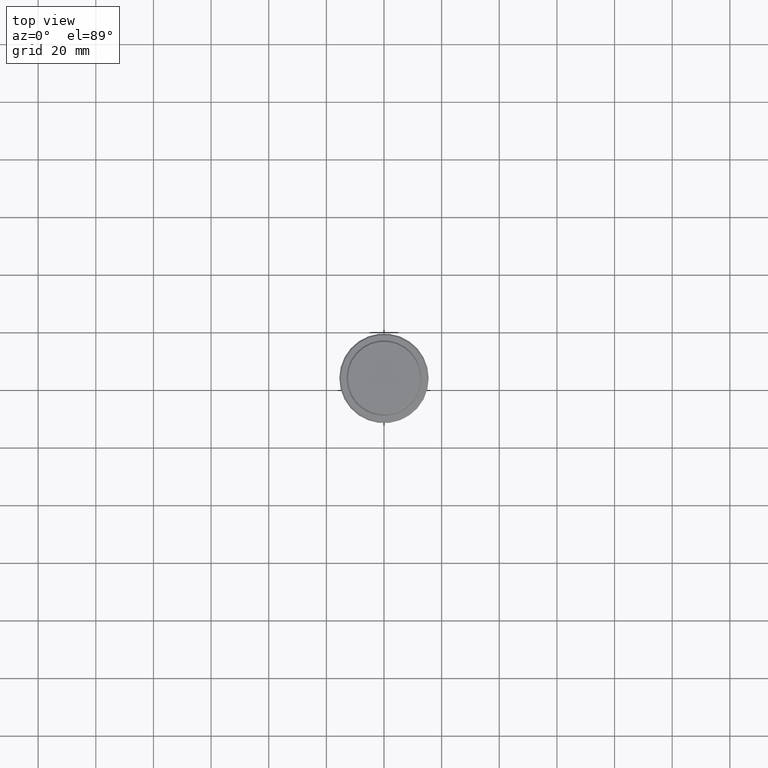
[diagram: clean part render]
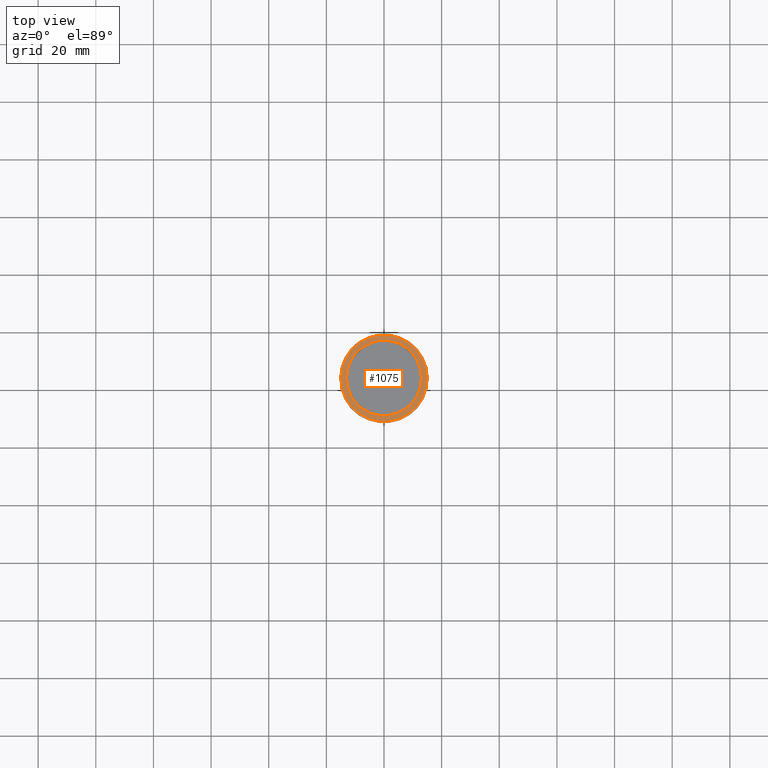
[diagram: same view with one face highlighted and labeled with its STEP entity id]
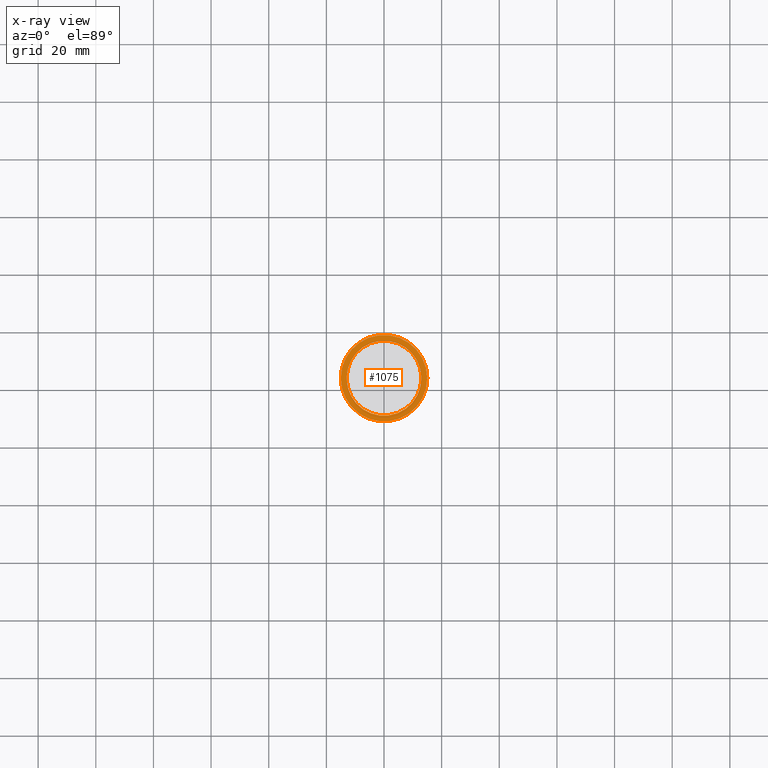
[diagram: x-ray of the same camera — body ghosted, the highlighted face saturated]
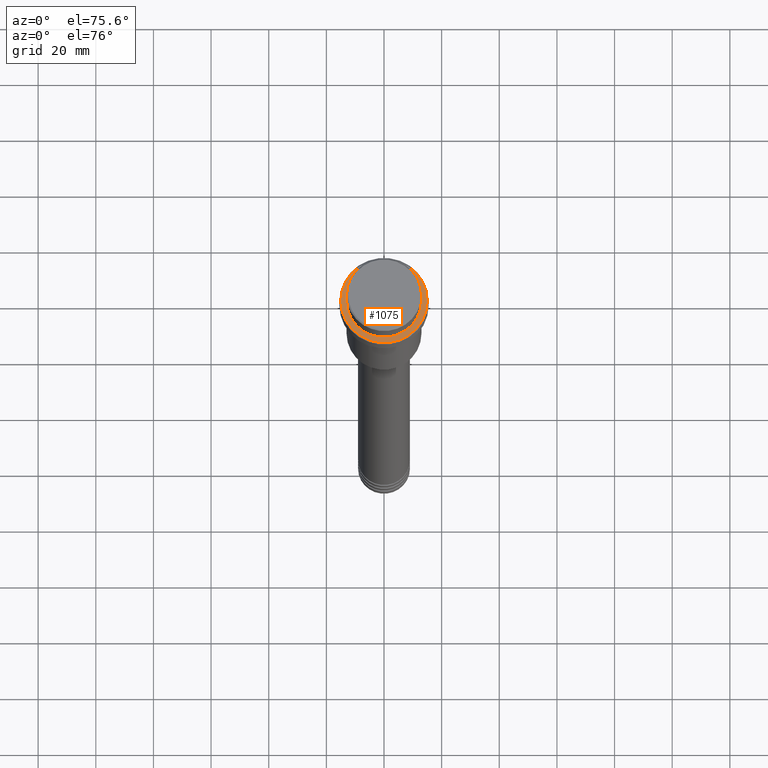
[diagram: same view with one face highlighted and labeled with its STEP entity id]
A machine part, top view. The second image highlights one B-rep face of the part: STEP entity #1075.
The next image is the same camera in x-ray: the body ghosted, the highlighted face saturated — about 0% of this face is hidden behind the body in this view.
A second angle (auxiliary view) of the same face is appended — the face is thin or edge-on in the first view.
In plain terms, the highlighted planar face has unit normal (0, -0, 1).
Its self-contained STEP definition (entity closure, byte-faithful):
#20 = DIRECTION ( 'NONE',  ( -0.000000000000000000, -0.000000000000000000, 1.000000000000000000 ) ) ;
#36 = AXIS2_PLACEMENT_3D ( 'NONE', #359, #497, #705 ) ;
#57 = CIRCLE ( 'NONE', #1032, 12.99999999999999467 ) ;
#68 = ORIENTED_EDGE ( 'NONE', *, *, #319, .T. ) ;
#155 = ORIENTED_EDGE ( 'NONE', *, *, #268, .T. ) ;
#171 = CARTESIAN_POINT ( 'NONE',  ( 0.000000000000000000, 12.49999999999999289, -9.000000000000001776 ) ) ;
#181 = FACE_BOUND ( 'NONE', #885, .T. ) ;
#197 = VERTEX_POINT ( 'NONE', #1140 ) ;
#212 = AXIS2_PLACEMENT_3D ( 'NONE', #171, #1070, #622 ) ;
#214 = VERTEX_POINT ( 'NONE', #894 ) ;
#249 = VERTEX_POINT ( 'NONE', #438 ) ;
#268 = EDGE_CURVE ( 'NONE', #197, #249, #57, .T. ) ;
#313 = AXIS2_PLACEMENT_3D ( 'NONE', #583, #1347, #805 ) ;
#319 = EDGE_CURVE ( 'NONE', #249, #197, #588, .T. ) ;
#359 = CARTESIAN_POINT ( 'NONE',  ( 0.000000000000000000, 0.000000000000000000, -9.000000000000001776 ) ) ;
#380 = VERTEX_POINT ( 'NONE', #1217 ) ;
#438 = CARTESIAN_POINT ( 'NONE',  ( 12.99999999999999467, 0.000000000000000000, -9.000000000000001776 ) ) ;
#473 = ORIENTED_EDGE ( 'NONE', *, *, #577, .T. ) ;
#497 = DIRECTION ( 'NONE',  ( -0.000000000000000000, -0.000000000000000000, 1.000000000000000000 ) ) ;
#506 = DIRECTION ( 'NONE',  ( 0.000000000000000000, 0.000000000000000000, -1.000000000000000000 ) ) ;
#521 = AXIS2_PLACEMENT_3D ( 'NONE', #574, #20, #1167 ) ;
#554 = ORIENTED_EDGE ( 'NONE', *, *, #983, .T. ) ;
#574 = CARTESIAN_POINT ( 'NONE',  ( 0.000000000000000000, 0.000000000000000000, -9.000000000000001776 ) ) ;
#577 = EDGE_CURVE ( 'NONE', #380, #214, #662, .T. ) ;
#583 = CARTESIAN_POINT ( 'NONE',  ( 0.000000000000000000, 0.000000000000000000, -9.000000000000001776 ) ) ;
#588 = CIRCLE ( 'NONE', #313, 12.99999999999999467 ) ;
#612 = CARTESIAN_POINT ( 'NONE',  ( 0.000000000000000000, 0.000000000000000000, -9.000000000000001776 ) ) ;
#622 = DIRECTION ( 'NONE',  ( 1.000000000000000000, 0.000000000000000000, 0.000000000000000000 ) ) ;
#626 = PLANE ( 'NONE',  #212 ) ;
#662 = CIRCLE ( 'NONE', #36, 15.00000000000004086 ) ;
#670 = EDGE_LOOP ( 'NONE', ( #554, #473 ) ) ;
#705 = DIRECTION ( 'NONE',  ( 1.000000000000000000, 0.000000000000000000, 0.000000000000000000 ) ) ;
#805 = DIRECTION ( 'NONE',  ( 1.000000000000000000, 0.000000000000000000, 0.000000000000000000 ) ) ;
#885 = EDGE_LOOP ( 'NONE', ( #68, #155 ) ) ;
#894 = CARTESIAN_POINT ( 'NONE',  ( -15.00000000000004086, 0.000000000000000000, -9.000000000000001776 ) ) ;
#983 = EDGE_CURVE ( 'NONE', #214, #380, #1277, .T. ) ;
#1032 = AXIS2_PLACEMENT_3D ( 'NONE', #612, #506, #1268 ) ;
#1070 = DIRECTION ( 'NONE',  ( 0.000000000000000000, -0.000000000000000000, 1.000000000000000000 ) ) ;
#1075 = ADVANCED_FACE ( 'NONE', ( #1156, #181 ), #626, .T. ) ;
#1140 = CARTESIAN_POINT ( 'NONE',  ( -12.99999999999999467, 1.592040838891558504E-15, -9.000000000000001776 ) ) ;
#1156 = FACE_OUTER_BOUND ( 'NONE', #670, .T. ) ;
#1167 = DIRECTION ( 'NONE',  ( 1.000000000000000000, 0.000000000000000000, 0.000000000000000000 ) ) ;
#1217 = CARTESIAN_POINT ( 'NONE',  ( 15.00000000000004086, 1.867586368699716531E-15, -9.000000000000001776 ) ) ;
#1268 = DIRECTION ( 'NONE',  ( 1.000000000000000000, 0.000000000000000000, 0.000000000000000000 ) ) ;
#1277 = CIRCLE ( 'NONE', #521, 15.00000000000004086 ) ;
#1347 = DIRECTION ( 'NONE',  ( 0.000000000000000000, 0.000000000000000000, -1.000000000000000000 ) ) ;